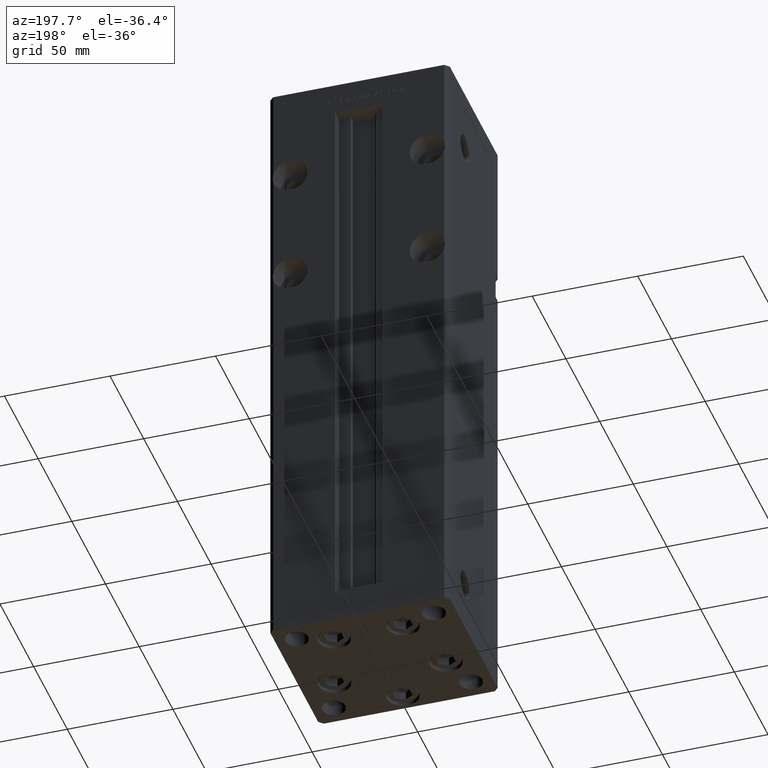
[diagram: clean part render]
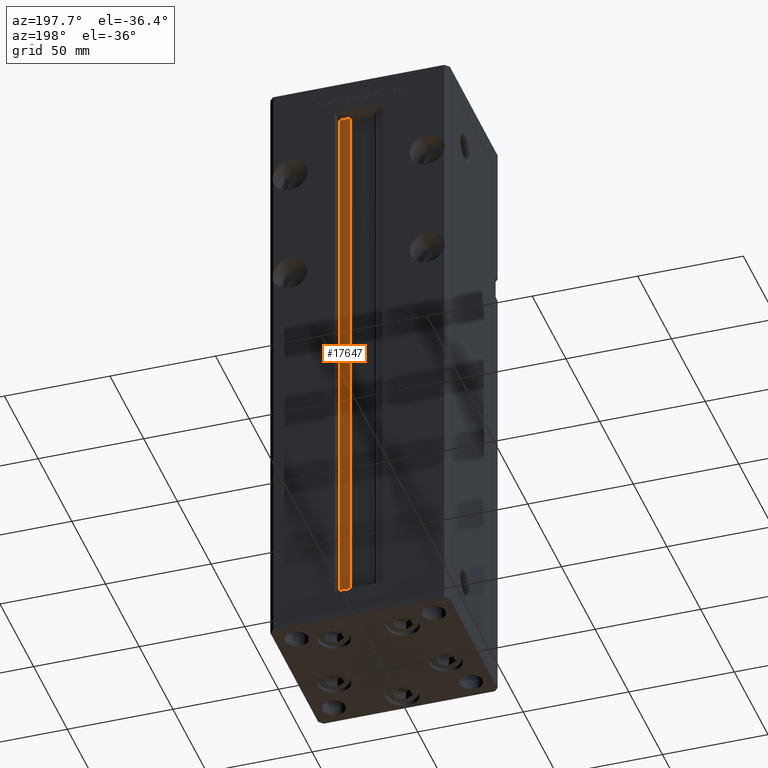
[diagram: same view with one face highlighted and labeled with its STEP entity id]
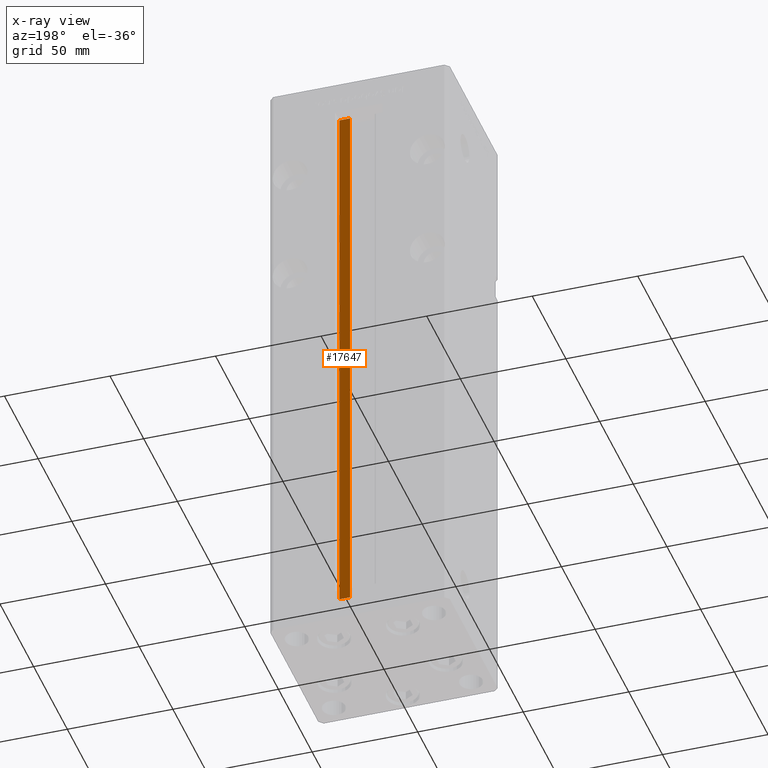
[diagram: x-ray of the same camera — body ghosted, the highlighted face saturated]
A machine part, auxiliary view. The second image highlights one B-rep face of the part: STEP entity #17647.
The next image is the same camera in x-ray: the body ghosted, the highlighted face saturated — about 0% of this face is hidden behind the body in this view.
In plain terms, the highlighted planar face has unit normal (0, -1, 0).
Its self-contained STEP definition (entity closure, byte-faithful):
#142 = CARTESIAN_POINT ( 'NONE',  ( 6.183333333333997928, 31.00000000000000000, 0.000000000000000000 ) ) ;
#4325 = LINE ( 'NONE', #29077, #11832 ) ;
#4865 = VERTEX_POINT ( 'NONE', #6451 ) ;
#4955 = DIRECTION ( 'NONE',  ( 0.000000000000000000, -1.000000000000000000, 0.000000000000000000 ) ) ;
#5492 = VECTOR ( 'NONE', #46038, 1000.000000000000000 ) ;
#6451 = CARTESIAN_POINT ( 'NONE',  ( 11.24999999999999822, 31.00000000000000000, 268.5000000000000000 ) ) ;
#8826 = DIRECTION ( 'NONE',  ( -0.000000000000000000, -0.000000000000000000, 1.000000000000000000 ) ) ;
#11832 = VECTOR ( 'NONE', #44940, 1000.000000000000000 ) ;
#14622 = VERTEX_POINT ( 'NONE', #24468 ) ;
#14674 = VERTEX_POINT ( 'NONE', #19892 ) ;
#16692 = ORIENTED_EDGE ( 'NONE', *, *, #47208, .T. ) ;
#17175 = LINE ( 'NONE', #32540, #28209 ) ;
#17647 = ADVANCED_FACE ( 'NONE', ( #28934 ), #49336, .F. ) ;
#19550 = DIRECTION ( 'NONE',  ( 1.000000000000000000, 0.000000000000000000, 0.000000000000000000 ) ) ;
#19892 = CARTESIAN_POINT ( 'NONE',  ( 6.183333333333997928, 31.00000000000000000, 268.5000000000000000 ) ) ;
#20314 = CARTESIAN_POINT ( 'NONE',  ( 6.183333333333997928, 31.00000000000000000, 0.000000000000000000 ) ) ;
#20579 = DIRECTION ( 'NONE',  ( 0.000000000000000000, -0.000000000000000000, -1.000000000000000000 ) ) ;
#24468 = CARTESIAN_POINT ( 'NONE',  ( 11.24999999999999822, 31.00000000000000000, 0.000000000000000000 ) ) ;
#24919 = EDGE_LOOP ( 'NONE', ( #47422, #29541, #16692, #26233 ) ) ;
#26233 = ORIENTED_EDGE ( 'NONE', *, *, #35867, .F. ) ;
#28209 = VECTOR ( 'NONE', #8826, 1000.000000000000000 ) ;
#28934 = FACE_OUTER_BOUND ( 'NONE', #24919, .T. ) ;
#29077 = CARTESIAN_POINT ( 'NONE',  ( 6.183333333333997928, 31.00000000000000000, 0.000000000000000000 ) ) ;
#29124 = AXIS2_PLACEMENT_3D ( 'NONE', #20314, #4955, #20579 ) ;
#29541 = ORIENTED_EDGE ( 'NONE', *, *, #42702, .F. ) ;
#31683 = LINE ( 'NONE', #48063, #52051 ) ;
#32540 = CARTESIAN_POINT ( 'NONE',  ( 11.24999999999999822, 31.00000000000000000, 0.000000000000000000 ) ) ;
#35867 = EDGE_CURVE ( 'NONE', #4865, #14674, #50321, .T. ) ;
#42702 = EDGE_CURVE ( 'NONE', #49987, #14622, #31683, .T. ) ;
#44940 = DIRECTION ( 'NONE',  ( -0.000000000000000000, -0.000000000000000000, 1.000000000000000000 ) ) ;
#45254 = CARTESIAN_POINT ( 'NONE',  ( 0.000000000000000000, 31.00000000000000000, 268.5000000000000000 ) ) ;
#46038 = DIRECTION ( 'NONE',  ( -1.000000000000000000, 0.000000000000000000, 0.000000000000000000 ) ) ;
#47208 = EDGE_CURVE ( 'NONE', #49987, #14674, #4325, .T. ) ;
#47422 = ORIENTED_EDGE ( 'NONE', *, *, #48364, .F. ) ;
#48063 = CARTESIAN_POINT ( 'NONE',  ( 6.183333333333997928, 31.00000000000000000, 0.000000000000000000 ) ) ;
#48364 = EDGE_CURVE ( 'NONE', #14622, #4865, #17175, .T. ) ;
#49336 = PLANE ( 'NONE',  #29124 ) ;
#49987 = VERTEX_POINT ( 'NONE', #142 ) ;
#50321 = LINE ( 'NONE', #45254, #5492 ) ;
#52051 = VECTOR ( 'NONE', #19550, 1000.000000000000000 ) ;